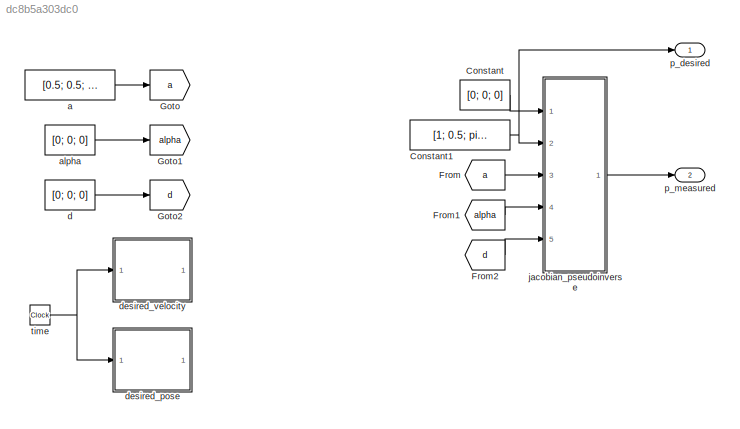
MODEL slx_dc8b5a303dc0
KIND model
CONFIG AbsTol = auto
CONFIG EnableMultiTasking = off
CONFIG FixedStep = auto
CONFIG MaxStep = auto
CONFIG MinStep = auto
CONFIG RelTol = 1e-3
CONFIG SampleTimeConstraint = Unconstrained
CONFIG SolverName = VariableStepAuto
CONFIG StartTime = 0.0
CONFIG StopTime = 4
BLOCK [Constant] Constant
  Value = [0; 0; 0]
BLOCK [Constant] Constant1
  Value = [1; 0.5; pi/4]
BLOCK [From] From
  GotoTag = a
BLOCK [From] From1
  GotoTag = alpha
BLOCK [From] From2
  GotoTag = d
BLOCK [Goto] Goto
  GotoTag = a
BLOCK [Goto] Goto1
  GotoTag = alpha
BLOCK [Goto] Goto2
  GotoTag = d
BLOCK [Constant] a
  Value = [0.5; 0.5; 0.5]
BLOCK [Constant] alpha
  Value = [0; 0; 0]
BLOCK [Constant] d
  Value = [0; 0; 0]
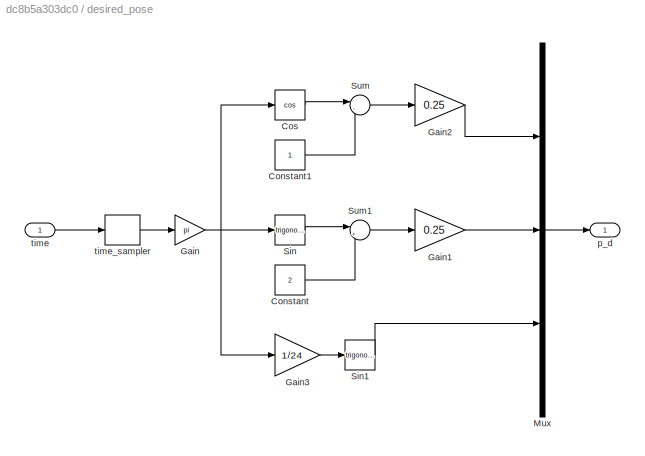
BLOCK [SubSystem] desired_pose
  Commented = on
  Ports = [1, 1]
  RequestExecContextInheritance = off
BLOCK [Constant] desired_pose/Constant
  Value = 2
BLOCK [Constant] desired_pose/Constant1
BLOCK [Trigonometry] desired_pose/Cos
  Operator = cos
  Ports = [1, 1]
BLOCK [Gain] desired_pose/Gain
  Gain = pi
BLOCK [Gain] desired_pose/Gain1
  Gain = 0.25
BLOCK [Gain] desired_pose/Gain2
  Gain = 0.25
BLOCK [Gain] desired_pose/Gain3
  Gain = 1/24
BLOCK [Mux] desired_pose/Mux
  DisplayOption = bar
  Inputs = 3
  Ports = [3, 1]
BLOCK [Trigonometry] desired_pose/Sin
  Ports = [1, 1]
BLOCK [Trigonometry] desired_pose/Sin1
  Ports = [1, 1]
BLOCK [Sum] desired_pose/Sum
  Inputs = |-+
  Ports = [2, 1]
BLOCK [Sum] desired_pose/Sum1
  Inputs = |++
  Ports = [2, 1]
BLOCK [Outport] desired_pose/p_d
BLOCK [Inport] desired_pose/time
BLOCK [ZeroOrderHold] desired_pose/time_sampler
  SampleTime = 1e-3
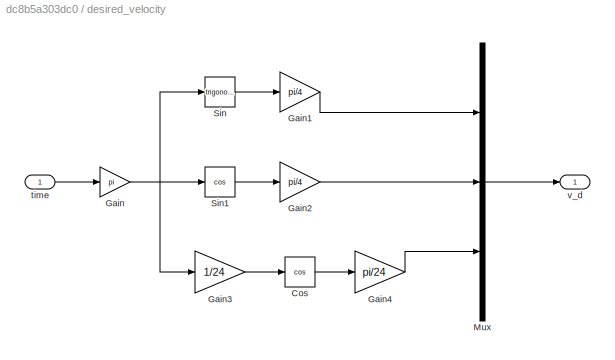
BLOCK [SubSystem] desired_velocity
  Commented = on
  Ports = [1, 1]
  RequestExecContextInheritance = off
BLOCK [Trigonometry] desired_velocity/Cos
  Operator = cos
  Ports = [1, 1]
BLOCK [Gain] desired_velocity/Gain
  Gain = pi
BLOCK [Gain] desired_velocity/Gain1
  Gain = pi/4
BLOCK [Gain] desired_velocity/Gain2
  Gain = pi/4
BLOCK [Gain] desired_velocity/Gain3
  Gain = 1/24
BLOCK [Gain] desired_velocity/Gain4
  Gain = pi/24
BLOCK [Mux] desired_velocity/Mux
  DisplayOption = bar
  Inputs = 3
  Ports = [3, 1]
BLOCK [Trigonometry] desired_velocity/Sin
  Ports = [1, 1]
BLOCK [Trigonometry] desired_velocity/Sin1
  Operator = cos
  Ports = [1, 1]
BLOCK [Inport] desired_velocity/time
BLOCK [Outport] desired_velocity/v_d
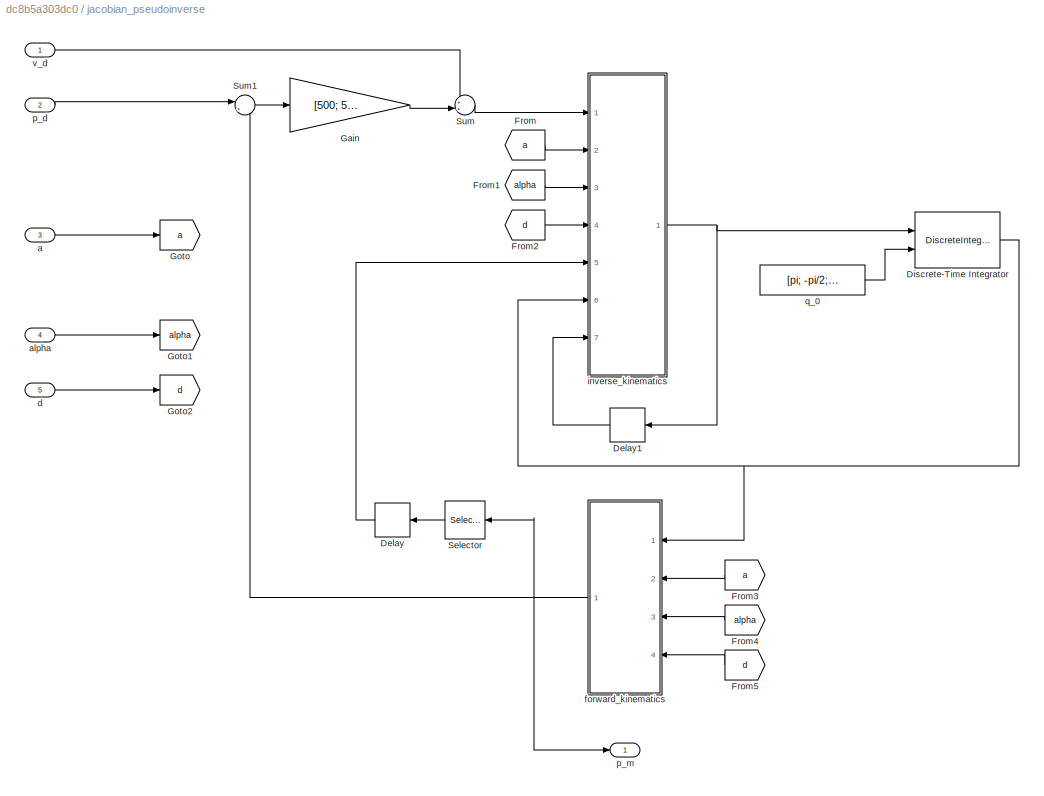
BLOCK [SubSystem] jacobian_pseudoinverse
  Ports = [5, 1]
  RequestExecContextInheritance = off
BLOCK [Delay] jacobian_pseudoinverse/Delay
  DelayLength = 1
  InputPortMap = u0
  NameLocation = top
  Ports = [1, 1]
BLOCK [Delay] jacobian_pseudoinverse/Delay1
  DelayLength = 1
  InputPortMap = u0
  NameLocation = top
  Ports = [1, 1]
  SampleTime = 1e-3
BLOCK [DiscreteIntegrator] jacobian_pseudoinverse/Discrete-Time Integrator
  ICPrevOutput = DiscIntNeverNeededParam
  ICPrevScaledInput = DiscIntNeverNeededParam
  InitialConditionSetting = Auto
  InitialConditionSource = external
  Ports = [2, 1]
  SampleTime = 1e-3
BLOCK [From] jacobian_pseudoinverse/From
  GotoTag = a
BLOCK [From] jacobian_pseudoinverse/From1
  GotoTag = alpha
BLOCK [From] jacobian_pseudoinverse/From2
  GotoTag = d
BLOCK [From] jacobian_pseudoinverse/From3
  GotoTag = a
  NameLocation = top
BLOCK [From] jacobian_pseudoinverse/From4
  GotoTag = alpha
  NameLocation = top
BLOCK [From] jacobian_pseudoinverse/From5
  GotoTag = d
  NameLocation = top
BLOCK [Gain] jacobian_pseudoinverse/Gain
  Gain = [500; 500; 500]
BLOCK [Goto] jacobian_pseudoinverse/Goto
  GotoTag = a
BLOCK [Goto] jacobian_pseudoinverse/Goto1
  GotoTag = alpha
BLOCK [Goto] jacobian_pseudoinverse/Goto2
  GotoTag = d
BLOCK [Selector] jacobian_pseudoinverse/Selector
  IndexOptions = Index vector (dialog)
  Indices = [3]
  InputPortWidth = 3
  NameLocation = top
  OutputSizes = 1
  Ports = [1, 1]
BLOCK [Sum] jacobian_pseudoinverse/Sum
  Inputs = ++|
  Ports = [2, 1]
BLOCK [Sum] jacobian_pseudoinverse/Sum1
  Inputs = |+-
  Ports = [2, 1]
BLOCK [Inport] jacobian_pseudoinverse/a
  Port = 3
BLOCK [Inport] jacobian_pseudoinverse/alpha
  Port = 4
BLOCK [Inport] jacobian_pseudoinverse/d
  Port = 5
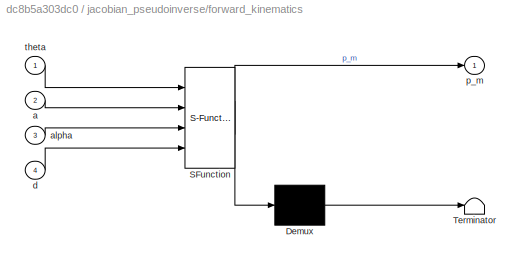
BLOCK [SubSystem] jacobian_pseudoinverse/forward_kinematics
  ErrorFcn = Stateflow.Translate.translate
  PermitHierarchicalResolution = ExplicitOnly
  Ports = [4, 1]
  RequestExecContextInheritance = off
  SFBlockType = MATLAB Function
  TreatAsAtomicUnit = on
BLOCK [Demux] jacobian_pseudoinverse/forward_kinematics/ Demux 
  Outputs = 1
  Ports = [1, 1]
BLOCK [S-Function] jacobian_pseudoinverse/forward_kinematics/ SFunction 
  EnableBusSupport = on
  FunctionName = sf_sfun
  PortCounts = [4 2]
  Ports = [4, 2]
  SFcnIsStateOwnerBlock = off
  SFunctionDeploymentMode = off
  Tag = Stateflow S-Function 1
BLOCK [Terminator] jacobian_pseudoinverse/forward_kinematics/ Terminator 
BLOCK [Inport] jacobian_pseudoinverse/forward_kinematics/a
  Port = 2
BLOCK [Inport] jacobian_pseudoinverse/forward_kinematics/alpha
  Port = 3
BLOCK [Inport] jacobian_pseudoinverse/forward_kinematics/d
  Port = 4
BLOCK [Outport] jacobian_pseudoinverse/forward_kinematics/p_m
BLOCK [Inport] jacobian_pseudoinverse/forward_kinematics/theta
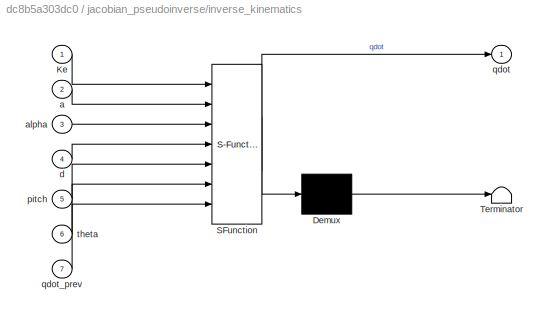
BLOCK [SubSystem] jacobian_pseudoinverse/inverse_kinematics
  ErrorFcn = Stateflow.Translate.translate
  PermitHierarchicalResolution = ExplicitOnly
  Ports = [7, 1]
  RequestExecContextInheritance = off
  SFBlockType = MATLAB Function
  TreatAsAtomicUnit = on
BLOCK [Demux] jacobian_pseudoinverse/inverse_kinematics/ Demux 
  Outputs = 1
  Ports = [1, 1]
BLOCK [S-Function] jacobian_pseudoinverse/inverse_kinematics/ SFunction 
  EnableBusSupport = on
  FunctionName = sf_sfun
  PortCounts = [7 2]
  Ports = [7, 2]
  SFcnIsStateOwnerBlock = off
  SFunctionDeploymentMode = off
  Tag = Stateflow S-Function 2
BLOCK [Terminator] jacobian_pseudoinverse/inverse_kinematics/ Terminator 
BLOCK [Inport] jacobian_pseudoinverse/inverse_kinematics/Ke
BLOCK [Inport] jacobian_pseudoinverse/inverse_kinematics/a
  Port = 2
BLOCK [Inport] jacobian_pseudoinverse/inverse_kinematics/alpha
  Port = 3
BLOCK [Inport] jacobian_pseudoinverse/inverse_kinematics/d
  Port = 4
BLOCK [Inport] jacobian_pseudoinverse/inverse_kinematics/pitch
  Port = 5
BLOCK [Outport] jacobian_pseudoinverse/inverse_kinematics/qdot
BLOCK [Inport] jacobian_pseudoinverse/inverse_kinematics/qdot_prev
  Port = 7
BLOCK [Inport] jacobian_pseudoinverse/inverse_kinematics/theta
  Port = 6
BLOCK [Inport] jacobian_pseudoinverse/p_d
  Port = 2
BLOCK [Outport] jacobian_pseudoinverse/p_m
BLOCK [Constant] jacobian_pseudoinverse/q_0
  Value = [pi; -pi/2; -pi/2]
BLOCK [Inport] jacobian_pseudoinverse/v_d
BLOCK [Outport] p_desired
BLOCK [Outport] p_measured
  Port = 2
BLOCK [Clock] time
  Commented = on
NET Constant1:1 -> jacobian_pseudoinverse:2, p_desired:1
LINE Constant:1 -> jacobian_pseudoinverse:1
LINE From1:1 -> jacobian_pseudoinverse:4
LINE From2:1 -> jacobian_pseudoinverse:5
LINE From:1 -> jacobian_pseudoinverse:3
LINE a:1 -> Goto:1
LINE alpha:1 -> Goto1:1
LINE d:1 -> Goto2:1
LINE desired_pose/Constant1:1 -> desired_pose/Sum:2
LINE desired_pose/Constant:1 -> desired_pose/Sum1:2
LINE desired_pose/Cos:1 -> desired_pose/Sum:1
LINE desired_pose/Gain1:1 -> desired_pose/Mux:2
LINE desired_pose/Gain2:1 -> desired_pose/Mux:1
LINE desired_pose/Gain3:1 -> desired_pose/Sin1:1
NET desired_pose/Gain:1 -> desired_pose/Cos:1, desired_pose/Gain3:1, desired_pose/Sin:1
LINE desired_pose/Mux:1 -> desired_pose/p_d:1
LINE desired_pose/Sin1:1 -> desired_pose/Mux:3
LINE desired_pose/Sin:1 -> desired_pose/Sum1:1
LINE desired_pose/Sum1:1 -> desired_pose/Gain1:1
LINE desired_pose/Sum:1 -> desired_pose/Gain2:1
LINE desired_pose/time:1 -> desired_pose/time_sampler:1
LINE desired_pose/time_sampler:1 -> desired_pose/Gain:1
LINE desired_velocity/Cos:1 -> desired_velocity/Gain4:1
LINE desired_velocity/Gain1:1 -> desired_velocity/Mux:1
LINE desired_velocity/Gain2:1 -> desired_velocity/Mux:2
LINE desired_velocity/Gain3:1 -> desired_velocity/Cos:1
LINE desired_velocity/Gain4:1 -> desired_velocity/Mux:3
NET desired_velocity/Gain:1 -> desired_velocity/Gain3:1, desired_velocity/Sin1:1, desired_velocity/Sin:1
LINE desired_velocity/Mux:1 -> desired_velocity/v_d:1
LINE desired_velocity/Sin1:1 -> desired_velocity/Gain2:1
LINE desired_velocity/Sin:1 -> desired_velocity/Gain1:1
LINE desired_velocity/time:1 -> desired_velocity/Gain:1
LINE jacobian_pseudoinverse/Delay1:1 -> jacobian_pseudoinverse/inverse_kinematics:7
LINE jacobian_pseudoinverse/Delay:1 -> jacobian_pseudoinverse/inverse_kinematics:5
NET jacobian_pseudoinverse/Discrete-Time Integrator:1 -> jacobian_pseudoinverse/forward_kinematics:1, jacobian_pseudoinverse/inverse_kinematics:6
LINE jacobian_pseudoinverse/From1:1 -> jacobian_pseudoinverse/inverse_kinematics:3
LINE jacobian_pseudoinverse/From2:1 -> jacobian_pseudoinverse/inverse_kinematics:4
LINE jacobian_pseudoinverse/From3:1 -> jacobian_pseudoinverse/forward_kinematics:2
LINE jacobian_pseudoinverse/From4:1 -> jacobian_pseudoinverse/forward_kinematics:3
LINE jacobian_pseudoinverse/From5:1 -> jacobian_pseudoinverse/forward_kinematics:4
LINE jacobian_pseudoinverse/From:1 -> jacobian_pseudoinverse/inverse_kinematics:2
LINE jacobian_pseudoinverse/Gain:1 -> jacobian_pseudoinverse/Sum:2
LINE jacobian_pseudoinverse/Selector:1 -> jacobian_pseudoinverse/Delay:1
LINE jacobian_pseudoinverse/Sum1:1 -> jacobian_pseudoinverse/Gain:1
LINE jacobian_pseudoinverse/Sum:1 -> jacobian_pseudoinverse/inverse_kinematics:1
LINE jacobian_pseudoinverse/a:1 -> jacobian_pseudoinverse/Goto:1
LINE jacobian_pseudoinverse/alpha:1 -> jacobian_pseudoinverse/Goto1:1
LINE jacobian_pseudoinverse/d:1 -> jacobian_pseudoinverse/Goto2:1
NET jacobian_pseudoinverse/forward_kinematics:1 -> jacobian_pseudoinverse/Selector:1, jacobian_pseudoinverse/Sum1:2, jacobian_pseudoinverse/p_m:1
NET jacobian_pseudoinverse/inverse_kinematics:1 -> jacobian_pseudoinverse/Delay1:1, jacobian_pseudoinverse/Discrete-Time Integrator:1
LINE jacobian_pseudoinverse/p_d:1 -> jacobian_pseudoinverse/Sum1:1
LINE jacobian_pseudoinverse/q_0:1 -> jacobian_pseudoinverse/Discrete-Time Integrator:2
LINE jacobian_pseudoinverse/v_d:1 -> jacobian_pseudoinverse/Sum:1
LINE jacobian_pseudoinverse:1 -> p_measured:1
NET time:1 -> desired_pose:1, desired_velocity:1
note: NET lines group one-source signal fan-out (src -> all destinations, sorted); 1:1 wires keep LINE
CHART jacobian_pseudoinverse/forward_kinematics states=1 transitions=1
  STATE_LABEL 'eML_blk_kernel()'
  STATE_LABEL "SCRIPT:\nfunction p_m = fcn(theta, a, alpha, d)\njoint_type = ['r'; 'r'; 'r'];\ns = forward_kinematics(joint_type, theta, a, alpha, d);\nx = s.end_effector_pose();\np_m = [x(1:2,:); x(6,:)];\n"
CHART jacobian_pseudoinverse/inverse_kinematics states=1 transitions=1
  STATE_LABEL 'eML_blk_kernel()'
  STATE_LABEL "SCRIPT:\nfunction qdot = fcn(Ke, a, alpha, d, pitch, theta, qdot_prev)\njoint_type = ['r'; 'r'; 'r'];\ns = forward_kinematics(joint_type, theta, a, alpha, d);\nJ = s.analytical_jacobian(0, pitch);\nJ_min = [J(1:2,:); J(6,:)];\nJ_inv = (transpose(J_min)/(J_min*transpose(J_min)));\nqdot = J_inv*Ke + (eye(3,3) - J_inv*J_min)*qdot_prev;\n"
CHART  states=0 transitions=0
CHART  states=0 transitions=0
